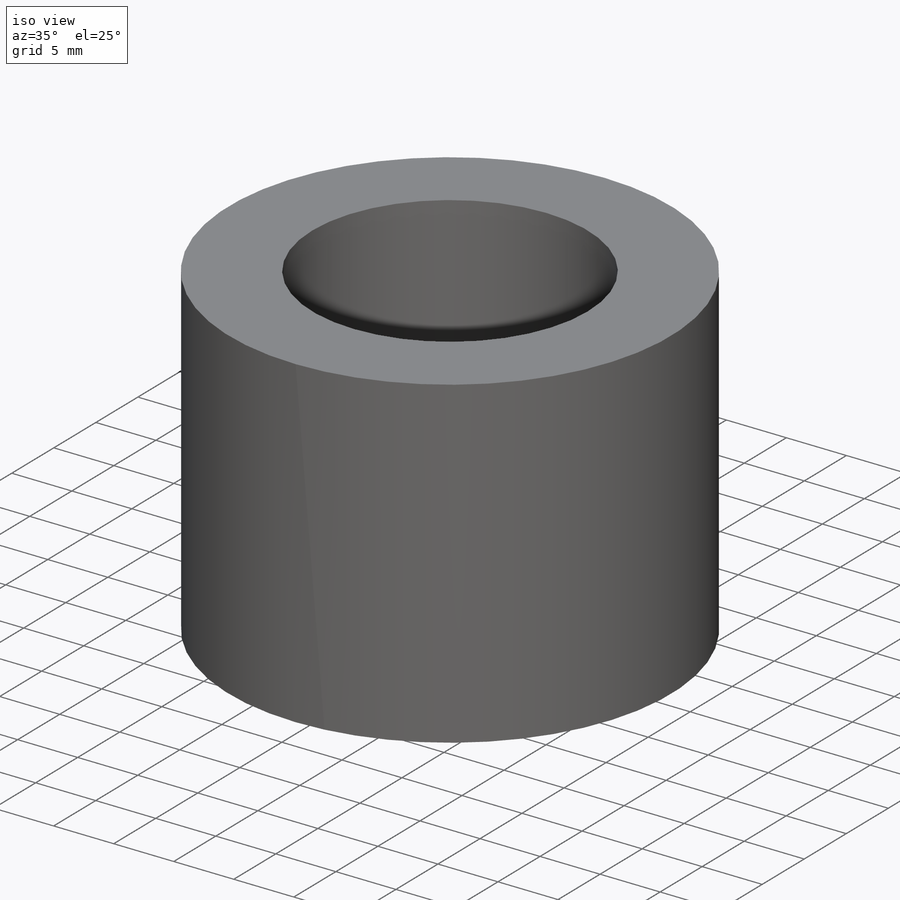
[diagram: iso view]
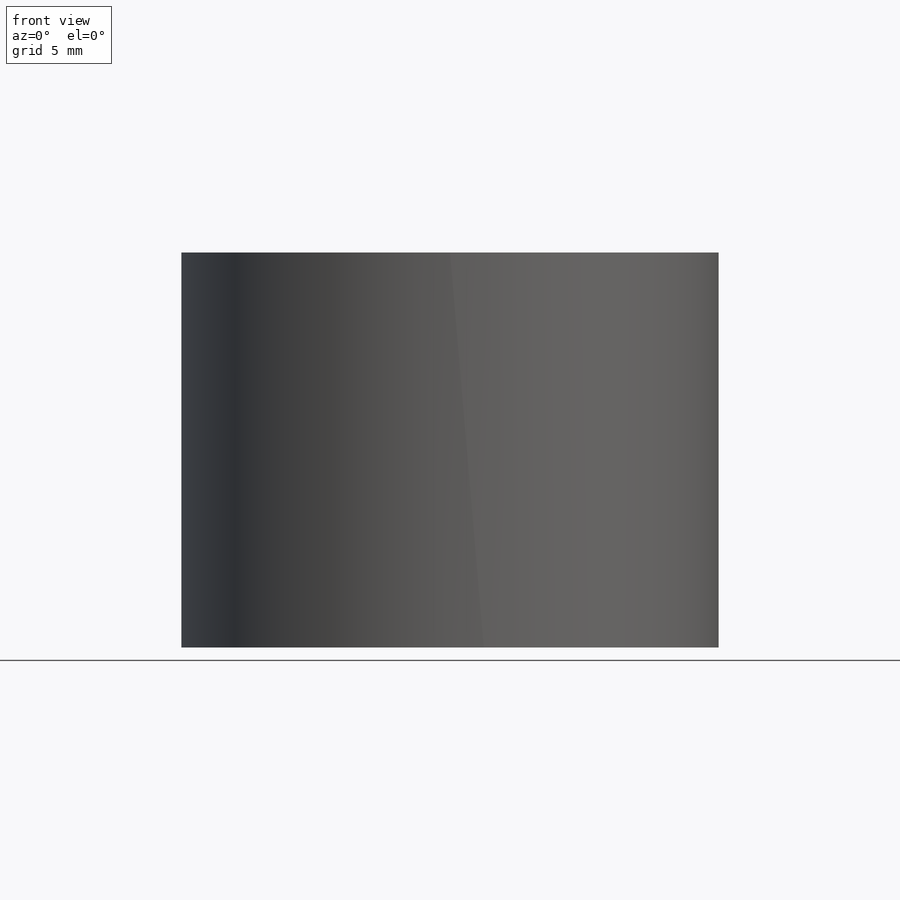
[diagram: front view]
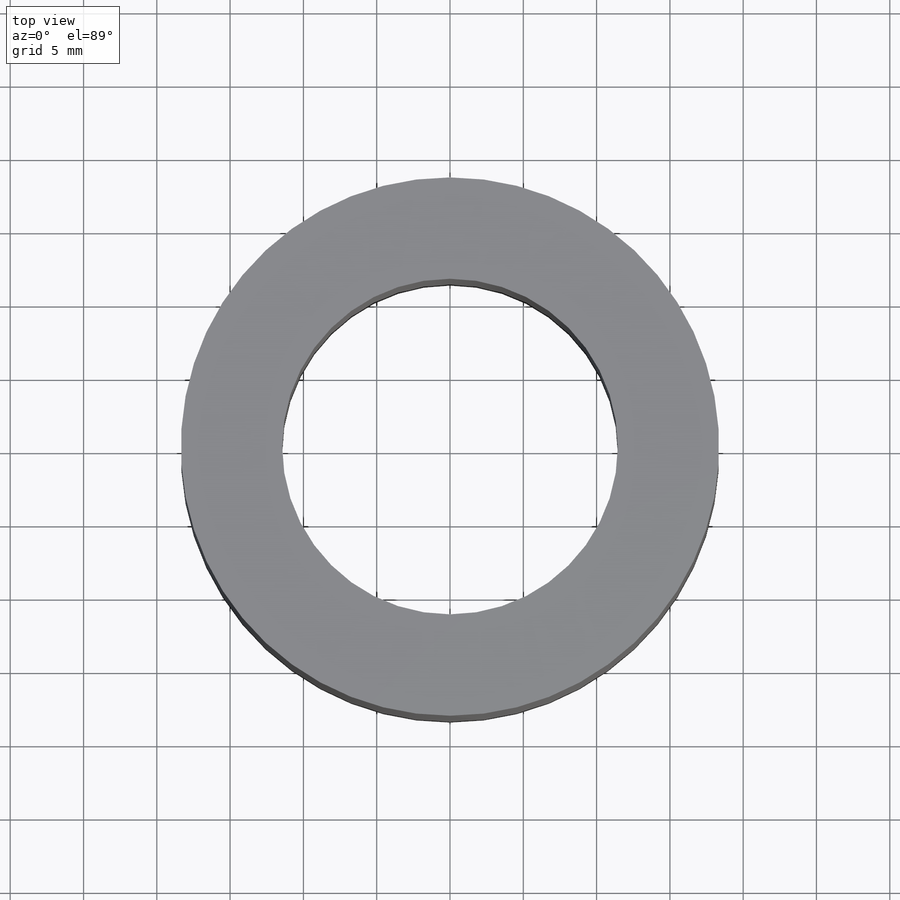
[diagram: top view]
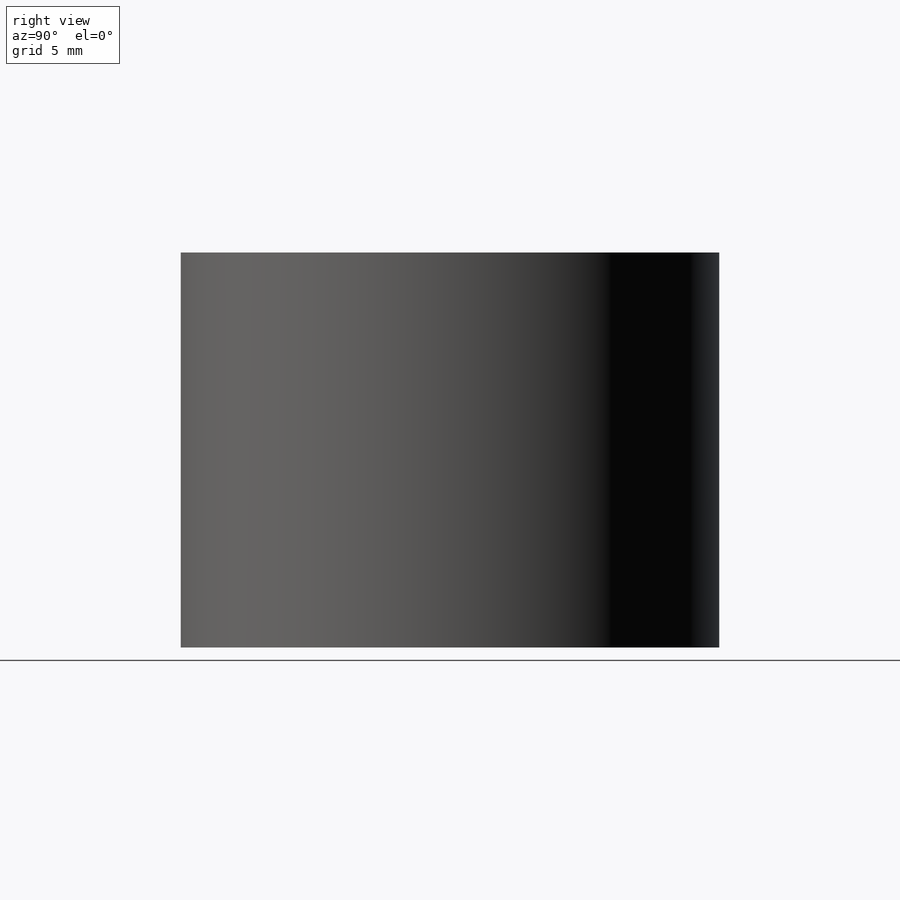
[diagram: right view]
SOLIDWORKS PART (.sldprt)
format: sldprt  version: not decoded by parser v0  size: 5,235,712 bytes
history: native  units: mm
features: sketch x26, delete_body x8, hole x7, chamfer x6, revolve x5, cut_extrude x4, fillet x3, thread x2, material x1, cut_revolve x1 (+11 scaffold rows collapsed)
feature tree (74):
  scaffold x11  (default folders/planes/origin — collapsed)
  material  "Ductile Iron"
  sketch  "Sketch1"  dims[c1.D12=~0.396875mm c1.D18=~0.79375mm c1.D22=~0.79375mm c1.D24=~0.79375mm c1.D25=~0.79375mm c1.D1=27.94mm c1.D2=2.54mm c1.D3=1.905mm c1.D4=21.6789mm c1.D5=4.445mm c1.D6=2.54mm c1.D7=6.35mm c1.D8=9.9314mm c2.D3=19.05mm c2.D9=0.0762mm c2.D10=3.175mm c2.D11=1.5875mm c2.D5=6.3881mm c2.D6=1.5875mm c2.D7=0.381mm c3.D10=1.397mm c3.D11=2.0193mm c3.D13=25.3492mm c3.D14=18.3896mm c3.D15=1.016mm c3.D16=32.385mm c3.D17=0.2032mm c3.D7=0.762mm c4.D10=~9.445909mm c5.D10=135.0deg c5.D11=0.254mm c5.D12=8.89mm c5.D19=25.3492mm c5.D20=3.7211mm c6.D20=135.0deg c6.D21=0.254mm c6.D23=18.415mm c6.D24=1.016mm c7.D24=~165.662655deg c7.D4=2.159mm c7.D3=21.209mm]
  revolve  "Revolve1"  Angle=360deg
  sketch  "Sketch3"  dims[c1.D5=1.5875mm c1.D1=0.127mm c1.D2=0.127mm c1.D3=0.127mm c1.D4=~3.258136mm c2.D4=135.0deg c2.D6=1.778mm c2.D7=12.954mm c2.D8=18.288mm c2.D1=360.0deg c2.D3=0.7366mm c3.D4=1.0mm c3.D7=0.0mm]
  hole  "CBORE for  Socket Head Cap Screw0"  Diameter=3.7973mm Depth=33.9725mm
  sketch  "Sketch5"
  sketch  "Sketch4"  dims[hole-wizard template sketch: 42 standard entries collapsed; hole parameters kept: c12.Thru Hole Depth=33.9725mm c12.C'Bore Dia.=5.969mm c12.C'Bore Depth=19.05mm]
  chamfer  "Chamfer1"  Distance=0.635mm Angle=45deg
  sketch  "Sketch6"  dims[c1.D1=40.005mm c1.D2=25.654mm c1.D3=0.9906mm c1.D4=5.9436mm c1.D5=2.5mm c1.D6=0.9906mm c2.D1=8.5598mm]
  revolve  "Revolve2"  Angle=360deg
  hole  "#4-40 Tapped Hole1"  Diameter=2.2606mm Depth=8.89mm
  sketch  "Sketch8"
  sketch  "Sketch7"  dims[hole-wizard template sketch: 50 standard entries collapsed; hole parameters above]
  thread  "Hole Thread1"  Diameter=6.985mm  [1 undecoded]
  chamfer  "Chamfer2"  Distance=0.635mm Angle=45deg
  hole  "1/16 (0.0625) Diameter Hole1"  Diameter=1.5875mm Depth=12.7mm
  sketch  "Sketch10"  dims[D1=18.161mm D2=11.684mm]
  sketch  "Sketch9"  dims[hole-wizard template sketch: 46 standard entries collapsed; hole parameters kept: c15.Hole Dia.=1.5875mm c15.Hole Depth=12.7mm c15.D3=~14.816244mm c15.Drill Angle=118.0deg]
  hole  "1/8 (0.125) Diameter Hole1"  Diameter=3.175mm Depth=5.08mm
  sketch  "Sketch13"  dims[D1=17.145mm]
  sketch  "Sketch12"  dims[hole-wizard template sketch: 47 standard entries collapsed; hole parameters kept: c15.Hole Depth=5.08mm c15.D3=~14.816244mm c15.Drill Angle=118.0deg]
  sketch  "Sketch14"  dims[c1.D5=0.254mm c1.D4=0.254mm c1.D1=10.922mm c1.D2=18.288mm c1.D3=21.59mm c2.D4=4.7625mm c2.D6=0.127mm c2.D7=~2.493597mm c3.D7=135.0deg c3.D8=13.843mm c3.D9=21.59mm c3.D3=28.448mm c3.D6=0.127mm c4.D9=~5.966169mm c4.D6=2.667mm]
  revolve  "Revolve3"  Angle=360deg
  chamfer  "Chamfer5"  Distance=0.127mm Angle=45deg
  sketch  "Sketch15"  dims[D4=~3.17246mm D1=6.35mm D2=25.4mm D3=10.795mm]
  cut_extrude  "Cut-Extrude1"  Depth=3.175mm
  sketch  "Sketch16"  dims[D1=5.08mm D2=13.97mm]
  cut_extrude  "Cut-Extrude2"  [1 undecoded]
  hole  "3/32 (0.09375) Diameter Hole2"  Diameter=2.38125mm Depth=7.62mm
  sketch  "Sketch18"  dims[D1=3.937mm]
  sketch  "Sketch17"  dims[hole-wizard template sketch: 47 standard entries collapsed; hole parameters kept: c15.Hole Depth=7.62mm c15.D3=~14.816244mm c15.Drill Angle=118.0deg]
  fillet  "Fillet1"  Radius=0.8509mm
  hole  "#39 (0.0995) Diameter Hole1"  Diameter=2.5273mm Depth=7.62mm
  sketch  "Sketch20"
  sketch  "Sketch19"  dims[hole-wizard template sketch: 47 standard entries collapsed; hole parameters kept: c15.Hole Depth=7.62mm c15.D3=~14.816244mm c15.Drill Angle=118.0deg]
  sketch  "Sketch21"  dims[c1.D6=1.5875mm c1.D9=1.5875mm c1.D1=19.05mm c1.D3=0.254mm c1.D2=0.0762mm c2.D3=0.0762mm c2.D4=3.175mm c2.D5=1.27mm c2.D7=25.4mm c2.D8=4.7625mm c2.D1=19.05mm]
  revolve  "Revolve4"  Angle=360deg
  hole  "1/4-20 Tapped Hole1"  Diameter=5.1054mm Depth=16.51mm
  sketch  "Sketch23"
  sketch  "Sketch22"  dims[hole-wizard template sketch: 50 standard entries collapsed; hole parameters above]
  thread  "Hole Thread2"  Diameter=16.51mm  [1 undecoded]
  sketch  "Sketch24"  dims[D1=4.445mm]
  cut_revolve  "Cut-Revolve1"  Angle=360deg
  fillet  "Fillet2"  Radius=0.127mm
  sketch  "Sketch25"  dims[c1.D1=0.0508mm c1.D2=21.2344mm c2.D2=90.0deg c3.D2=0.127mm c3.D3=0.508mm c3.D4=0.127mm c4.D3=0.381mm c4.D1=360.0deg c5.D3=0.762mm c5.D4=1.0mm c5.D7=0.0mm]
  fillet  "Fillet3"  Radius=0.254mm
  delete_body  "preserving spool"
  sketch  "Sketch27"
  cut_extrude  "Cut-Extrude3"  [1 undecoded]
  delete_body  "preserving rev02 spool"
  sketch  "Sketch26"
  revolve  "Revolve5"  Angle=360deg
  delete_body  "preserving coils"
  delete_body  "preserving core"
  delete_body  "preserving hub"
  delete_body  "preserving shaft"
  delete_body  "preserving mandrel"
  chamfer  "Chamfer6"  Distance=2.921mm Angle=15deg
  chamfer  "Chamfer7"  Distance=4.1148mm Angle=15deg
  delete_body  "preserving rev02 coils"
  sketch  "Sketch28"
  cut_extrude  "Cut-Extrude4"  Depth=2.54mm
  chamfer  "Chamfer8"  Distance=1.016mm Angle=45deg
decode coverage: 45 of 62 modeling features carry decoded parameters
note: ~ marks probable driven/reference dimensions
note: 4 parameter values undecoded
summary: Diameter pulled from absorbed wizard sketch
note: suppression state not decoded; provenance and decode notes live in map.json
